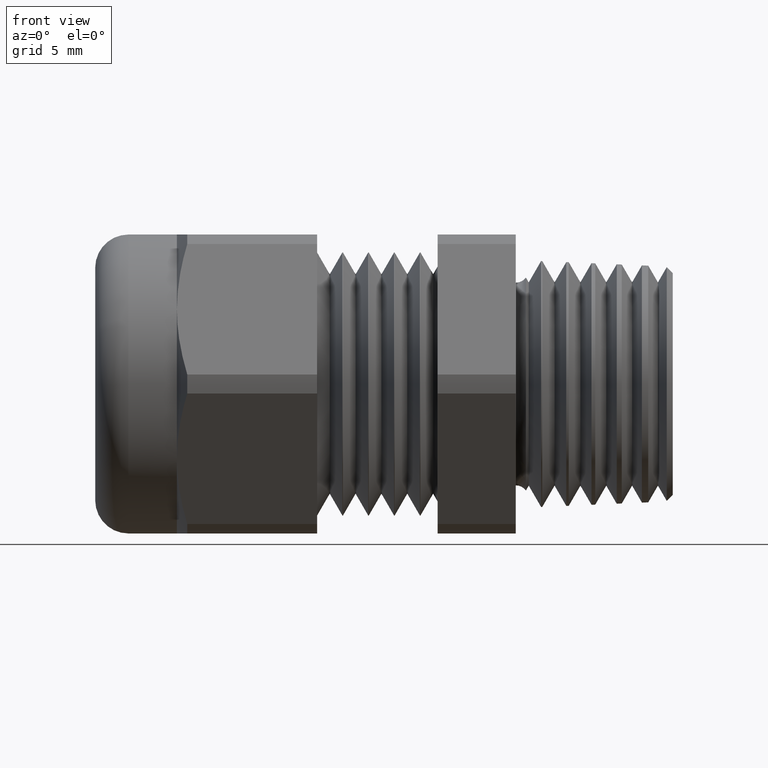
[diagram: clean part render]
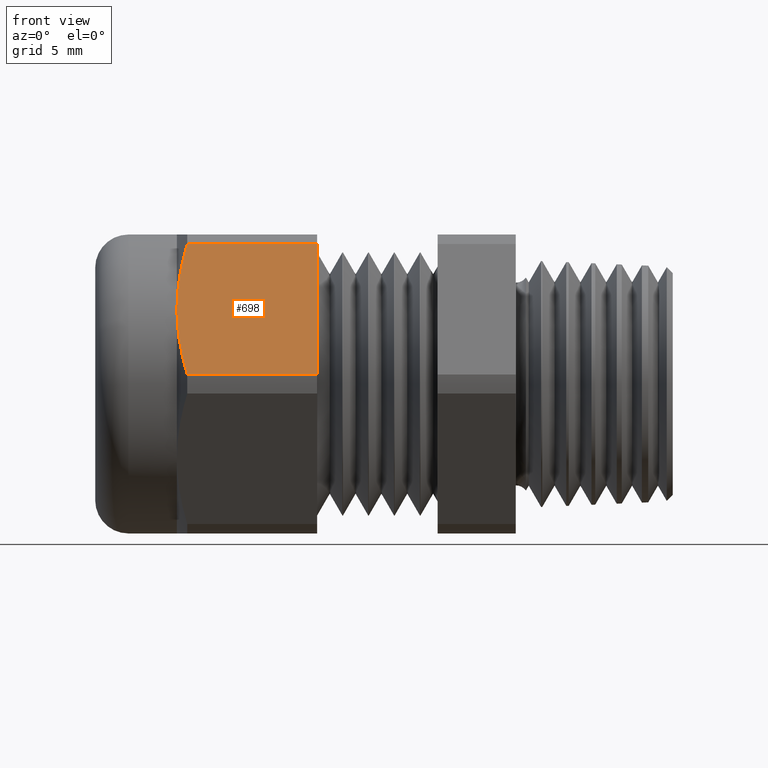
[diagram: same view with one face highlighted and labeled with its STEP entity id]
A machine part, front view. The second image highlights one B-rep face of the part: STEP entity #698.
In plain terms, the highlighted planar face has unit normal (0, -0.866, 0.5).
Its self-contained STEP definition (entity closure, byte-faithful):
#609 = VERTEX_POINT ( 'NONE', #2329 ) ;
#612 = EDGE_CURVE ( 'NONE', #609, #613, #2304, .T. ) ;
#613 = VERTEX_POINT ( 'NONE', #2300 ) ;
#631 = ORIENTED_EDGE ( 'NONE', *, *, #632, .T. ) ;
#632 = EDGE_CURVE ( 'NONE', #609, #633, #2495, .T. ) ;
#633 = VERTEX_POINT ( 'NONE', #2494 ) ;
#634 = ORIENTED_EDGE ( 'NONE', *, *, #635, .T. ) ;
#635 = EDGE_CURVE ( 'NONE', #633, #776, #2360, .T. ) ;
#636 = ORIENTED_EDGE ( 'NONE', *, *, #755, .T. ) ;
#663 = ORIENTED_EDGE ( 'NONE', *, *, #664, .T. ) ;
#664 = EDGE_CURVE ( 'NONE', #741, #613, #2595, .T. ) ;
#698 = ADVANCED_FACE ( 'NONE', ( #2644 ), #2643, .T. ) ;
#699 = EDGE_LOOP ( 'NONE', ( #700, #631, #634, #636, #663 ) ) ;
#700 = ORIENTED_EDGE ( 'NONE', *, *, #612, .F. ) ;
#741 = VERTEX_POINT ( 'NONE', #2506 ) ;
#755 = EDGE_CURVE ( 'NONE', #776, #741, #2575, .T. ) ;
#776 = VERTEX_POINT ( 'NONE', #2787 ) ;
#2300 = CARTESIAN_POINT ( 'NONE',  ( -0.3920833333333332800, -0.1810813248601901000, 0.2763579450402653400 ) ) ;
#2301 = DIRECTION ( 'NONE',  ( 1.000000000000000000, 0.0000000000000000000, 0.0000000000000000000 ) ) ;
#2302 = VECTOR ( 'NONE', #2301, 39.37007874015748100 ) ;
#2303 = CARTESIAN_POINT ( 'NONE',  ( -1.612607445236302800, -0.1810813248601901000, 0.2763579450402653400 ) ) ;
#2304 = LINE ( 'NONE', #2303, #2302 ) ;
#2329 = CARTESIAN_POINT ( 'NONE',  ( -0.6483118004706871500, -0.1810813248601901300, 0.2763579450402653400 ) ) ;
#2354 = CARTESIAN_POINT ( 'NONE',  ( -0.6483118004706871500, -0.3298736633726286300, 0.01864205495973466500 ) ) ;
#2355 = CARTESIAN_POINT ( 'NONE',  ( -0.6546447182807060300, -0.3176951591070877900, 0.03973584310784562100 ) ) ;
#2356 = CARTESIAN_POINT ( 'NONE',  ( -0.6597888758521447400, -0.3054192889189821200, 0.06099827398076465600 ) ) ;
#2357 = CARTESIAN_POINT ( 'NONE',  ( -0.6668553477117321600, -0.2806036620722653400, 0.1039802005009485800 ) ) ;
#2358 = CARTESIAN_POINT ( 'NONE',  ( -0.6687499999999996200, -0.2679795915325348100, 0.1258457320740949400 ) ) ;
#2359 = CARTESIAN_POINT ( 'NONE',  ( -0.6687499999999999600, -0.2554774941164094100, 0.1474999999999998300 ) ) ;
#2360 = B_SPLINE_CURVE_WITH_KNOTS ( 'NONE', 3,
 ( #2359, #2358, #2357, #2356, #2355, #2354 ),
 .UNSPECIFIED., .F., .F.,
 ( 4, 2, 4 ),
 ( 0.003813694281531657600, 0.005707528494126043800, 0.007601362706720430800 ),
 .UNSPECIFIED. ) ;
#2490 = CARTESIAN_POINT ( 'NONE',  ( -0.6687499999999999600, -0.2554774941164094100, 0.1474999999999998300 ) ) ;
#2491 = CARTESIAN_POINT ( 'NONE',  ( -0.6687499999999999600, -0.2303030490828604800, 0.1911034178504566500 ) ) ;
#2492 = CARTESIAN_POINT ( 'NONE',  ( -0.6610377494917055700, -0.2055539343404729800, 0.2339701420266237800 ) ) ;
#2493 = CARTESIAN_POINT ( 'NONE',  ( -0.6483118004706871500, -0.1810813248601901300, 0.2763579450402653400 ) ) ;
#2494 = CARTESIAN_POINT ( 'NONE',  ( -0.6687499999999999600, -0.2554774941164094100, 0.1474999999999998300 ) ) ;
#2495 = B_SPLINE_CURVE_WITH_KNOTS ( 'NONE', 3,
 ( #2493, #2492, #2491, #2490 ),
 .UNSPECIFIED., .F., .F.,
 ( 4, 4 ),
 ( 2.361312121601128200E-007, 0.003813694281531657600 ),
 .UNSPECIFIED. ) ;
#2506 = CARTESIAN_POINT ( 'NONE',  ( -0.3920833333333332800, -0.3298736633726286300, 0.01864205495973465500 ) ) ;
#2518 = VECTOR ( 'NONE', #2593, 39.37007874015748100 ) ;
#2572 = DIRECTION ( 'NONE',  ( 1.000000000000000000, 0.0000000000000000000, 0.0000000000000000000 ) ) ;
#2573 = VECTOR ( 'NONE', #2572, 39.37007874015748100 ) ;
#2574 = CARTESIAN_POINT ( 'NONE',  ( -1.612607445236302800, -0.3298736633726285800, 0.01864205495973465100 ) ) ;
#2575 = LINE ( 'NONE', #2574, #2573 ) ;
#2593 = DIRECTION ( 'NONE',  ( 0.0000000000000000000, 0.5000000000000000000, 0.8660254037844386000 ) ) ;
#2594 = CARTESIAN_POINT ( 'NONE',  ( -0.3920833333333332800, -0.1905524941164093200, 0.2599533986814093200 ) ) ;
#2595 = LINE ( 'NONE', #2594, #2518 ) ;
#2638 = DIRECTION ( 'NONE',  ( 0.0000000000000000000, -0.5000000000000000000, -0.8660254037844386000 ) ) ;
#2639 = DIRECTION ( 'NONE',  ( 0.0000000000000000000, -0.8660254037844387100, 0.5000000000000001100 ) ) ;
#2640 = CARTESIAN_POINT ( 'NONE',  ( -1.612607445236302800, -0.1810813248601901300, 0.2763579450402653400 ) ) ;
#2641 = AXIS2_PLACEMENT_3D ( 'NONE', #2640, #2639, #2638 ) ;
#2643 = PLANE ( 'NONE',  #2641 ) ;
#2644 = FACE_OUTER_BOUND ( 'NONE', #699, .T. ) ;
#2787 = CARTESIAN_POINT ( 'NONE',  ( -0.6483118004706871500, -0.3298736633726286300, 0.01864205495973466500 ) ) ;